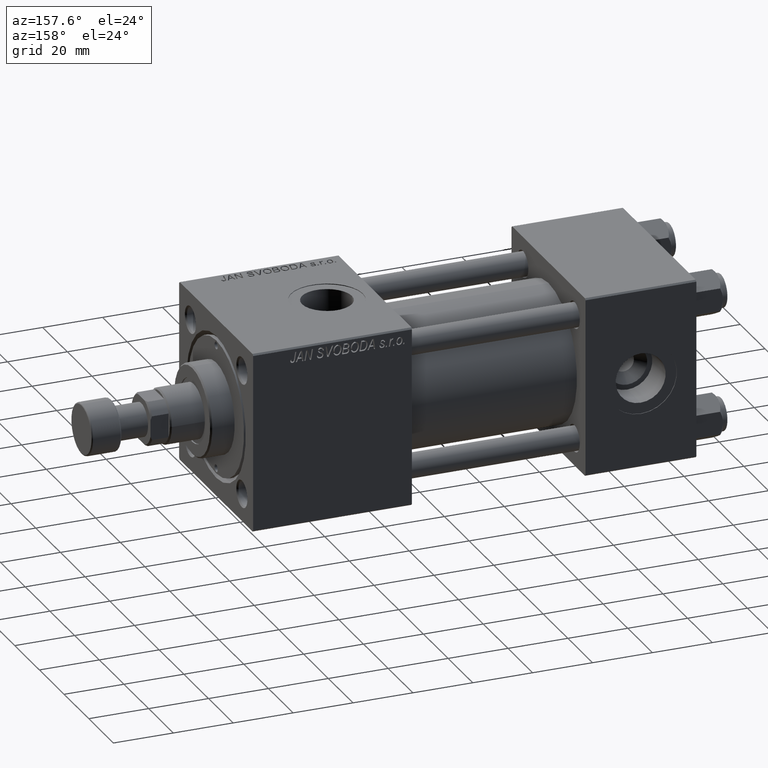
[diagram: clean part render]
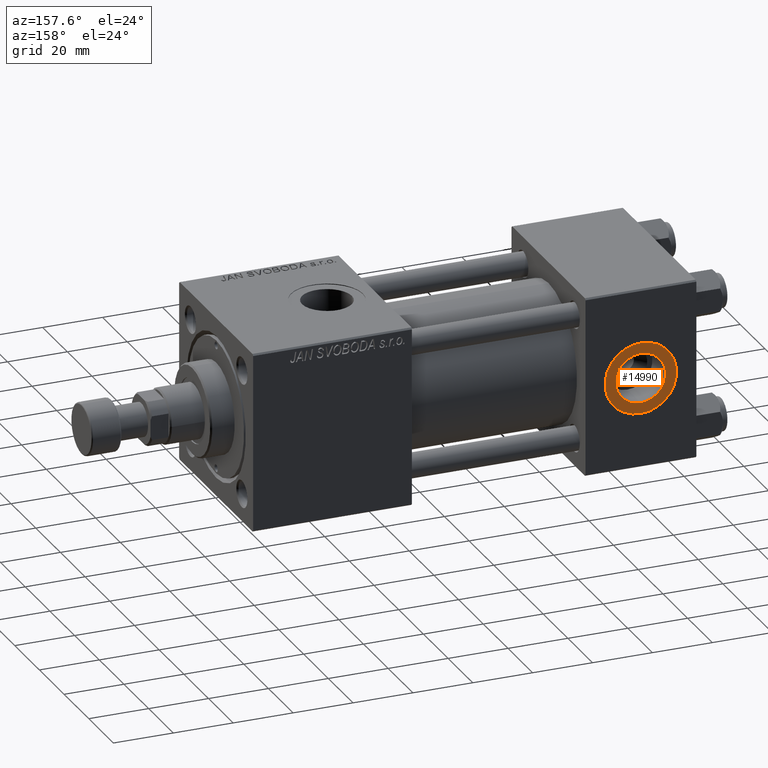
[diagram: same view with one face highlighted and labeled with its STEP entity id]
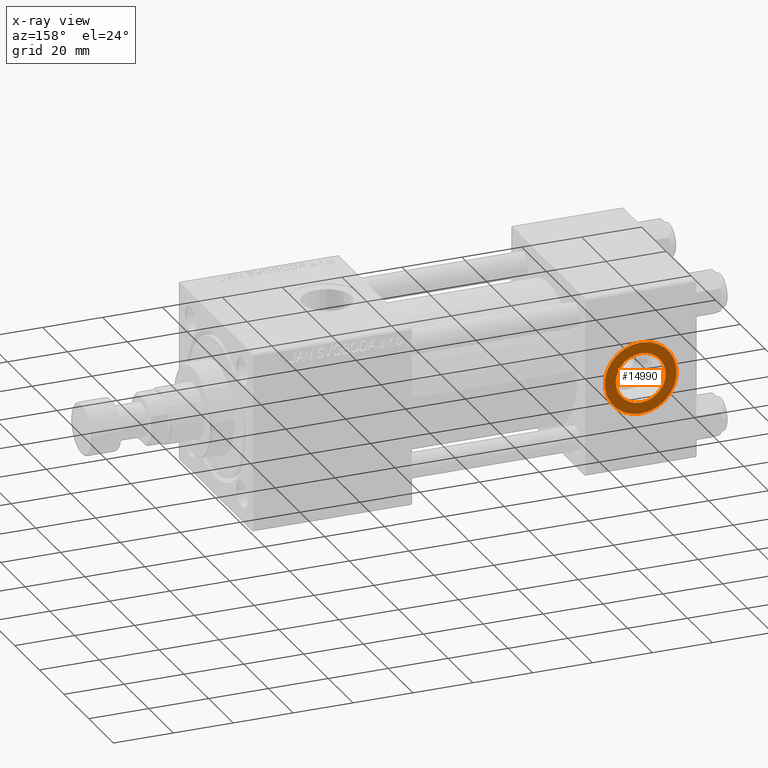
[diagram: x-ray of the same camera — body ghosted, the highlighted face saturated]
A machine part, auxiliary view. The second image highlights one B-rep face of the part: STEP entity #14990.
The next image is the same camera in x-ray: the body ghosted, the highlighted face saturated — about 0% of this face is hidden behind the body in this view.
In plain terms, the highlighted planar face has unit normal (0, 1, 0).
Its self-contained STEP definition (entity closure, byte-faithful):
#2810 = AXIS2_PLACEMENT_3D ( 'NONE', #35737, #3200, #12545 ) ;
#3200 = DIRECTION ( 'NONE',  ( 0.000000000000000000, 1.000000000000000000, 0.000000000000000000 ) ) ;
#3820 = VERTEX_POINT ( 'NONE', #21522 ) ;
#5687 = CARTESIAN_POINT ( 'NONE',  ( 18.50000000000000000, 29.79999999999999361, 12.00000000000000178 ) ) ;
#6597 = DIRECTION ( 'NONE',  ( 0.000000000000000000, 0.000000000000000000, 1.000000000000000000 ) ) ;
#7937 = CIRCLE ( 'NONE', #2810, 12.00000000000000178 ) ;
#9309 = AXIS2_PLACEMENT_3D ( 'NONE', #38594, #10329, #26336 ) ;
#9376 = EDGE_CURVE ( 'NONE', #18882, #24008, #22033, .T. ) ;
#9547 = PLANE ( 'NONE',  #9309 ) ;
#9663 = DIRECTION ( 'NONE',  ( 0.000000000000000000, 0.000000000000000000, 1.000000000000000000 ) ) ;
#10145 = CIRCLE ( 'NONE', #23780, 8.330000000000001847 ) ;
#10329 = DIRECTION ( 'NONE',  ( 0.000000000000000000, 1.000000000000000000, 0.000000000000000000 ) ) ;
#12545 = DIRECTION ( 'NONE',  ( 0.000000000000000000, 0.000000000000000000, 1.000000000000000000 ) ) ;
#13294 = FACE_BOUND ( 'NONE', #35785, .T. ) ;
#13687 = EDGE_CURVE ( 'NONE', #24008, #18882, #10145, .T. ) ;
#14990 = ADVANCED_FACE ( 'NONE', ( #13294, #38333 ), #9547, .T. ) ;
#18307 = VERTEX_POINT ( 'NONE', #5687 ) ;
#18882 = VERTEX_POINT ( 'NONE', #27336 ) ;
#19112 = AXIS2_PLACEMENT_3D ( 'NONE', #21787, #25786, #39006 ) ;
#21522 = CARTESIAN_POINT ( 'NONE',  ( 18.50000000000000000, 29.79999999999999361, -12.00000000000000178 ) ) ;
#21787 = CARTESIAN_POINT ( 'NONE',  ( 18.50000000000000000, 29.79999999999999361, 0.000000000000000000 ) ) ;
#22033 = CIRCLE ( 'NONE', #43339, 8.330000000000001847 ) ;
#22869 = CARTESIAN_POINT ( 'NONE',  ( 18.50000000000000000, 29.79999999999999361, 0.000000000000000000 ) ) ;
#23076 = EDGE_CURVE ( 'NONE', #3820, #18307, #7937, .T. ) ;
#23635 = ORIENTED_EDGE ( 'NONE', *, *, #9376, .F. ) ;
#23780 = AXIS2_PLACEMENT_3D ( 'NONE', #42202, #26189, #9663 ) ;
#24008 = VERTEX_POINT ( 'NONE', #31553 ) ;
#25786 = DIRECTION ( 'NONE',  ( 0.000000000000000000, 1.000000000000000000, 0.000000000000000000 ) ) ;
#26189 = DIRECTION ( 'NONE',  ( 0.000000000000000000, 1.000000000000000000, 0.000000000000000000 ) ) ;
#26336 = DIRECTION ( 'NONE',  ( 0.000000000000000000, -0.000000000000000000, 1.000000000000000000 ) ) ;
#26493 = ORIENTED_EDGE ( 'NONE', *, *, #13687, .F. ) ;
#27336 = CARTESIAN_POINT ( 'NONE',  ( 18.50000000000000000, 29.79999999999999361, 8.330000000000001847 ) ) ;
#28921 = EDGE_CURVE ( 'NONE', #18307, #3820, #42911, .T. ) ;
#31553 = CARTESIAN_POINT ( 'NONE',  ( 18.50000000000000000, 29.79999999999999361, -8.330000000000001847 ) ) ;
#34604 = DIRECTION ( 'NONE',  ( 0.000000000000000000, 1.000000000000000000, 0.000000000000000000 ) ) ;
#35737 = CARTESIAN_POINT ( 'NONE',  ( 18.50000000000000000, 29.79999999999999361, 0.000000000000000000 ) ) ;
#35785 = EDGE_LOOP ( 'NONE', ( #23635, #26493 ) ) ;
#36247 = EDGE_LOOP ( 'NONE', ( #36866, #44005 ) ) ;
#36866 = ORIENTED_EDGE ( 'NONE', *, *, #28921, .T. ) ;
#38333 = FACE_OUTER_BOUND ( 'NONE', #36247, .T. ) ;
#38594 = CARTESIAN_POINT ( 'NONE',  ( 18.50000000000000000, 29.79999999999999361, 0.000000000000000000 ) ) ;
#39006 = DIRECTION ( 'NONE',  ( 0.000000000000000000, 0.000000000000000000, 1.000000000000000000 ) ) ;
#42202 = CARTESIAN_POINT ( 'NONE',  ( 18.50000000000000000, 29.79999999999999361, 0.000000000000000000 ) ) ;
#42911 = CIRCLE ( 'NONE', #19112, 12.00000000000000178 ) ;
#43339 = AXIS2_PLACEMENT_3D ( 'NONE', #22869, #34604, #6597 ) ;
#44005 = ORIENTED_EDGE ( 'NONE', *, *, #23076, .T. ) ;